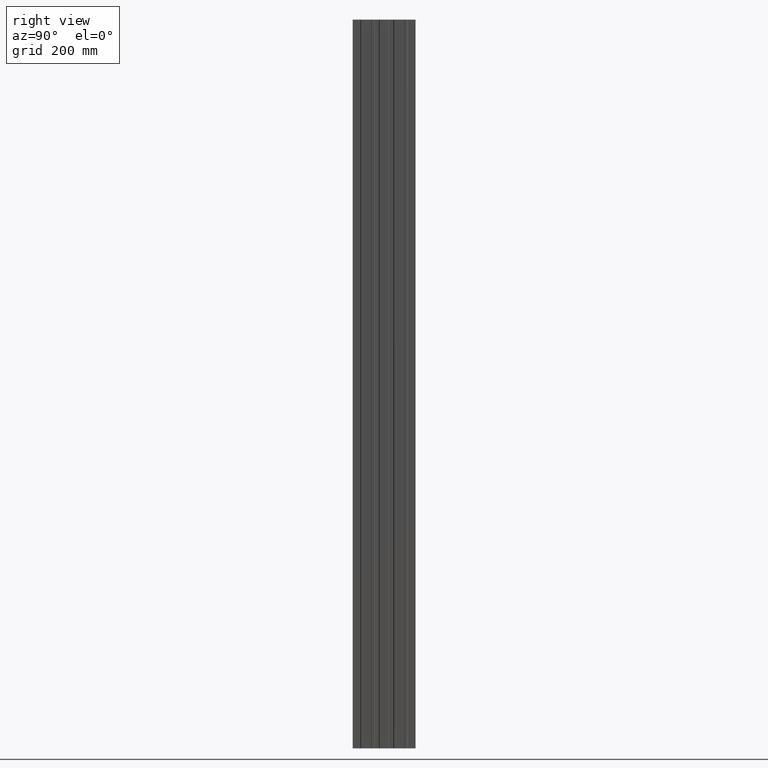
[diagram: clean part render]
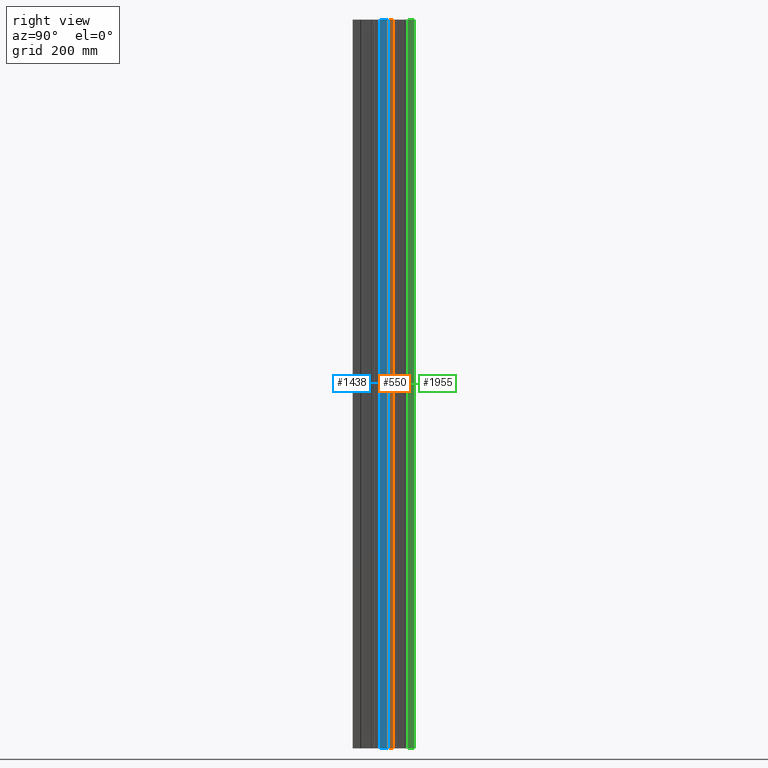
[diagram: same view with three faces highlighted in distinct colors, each labeled with its STEP entity id]
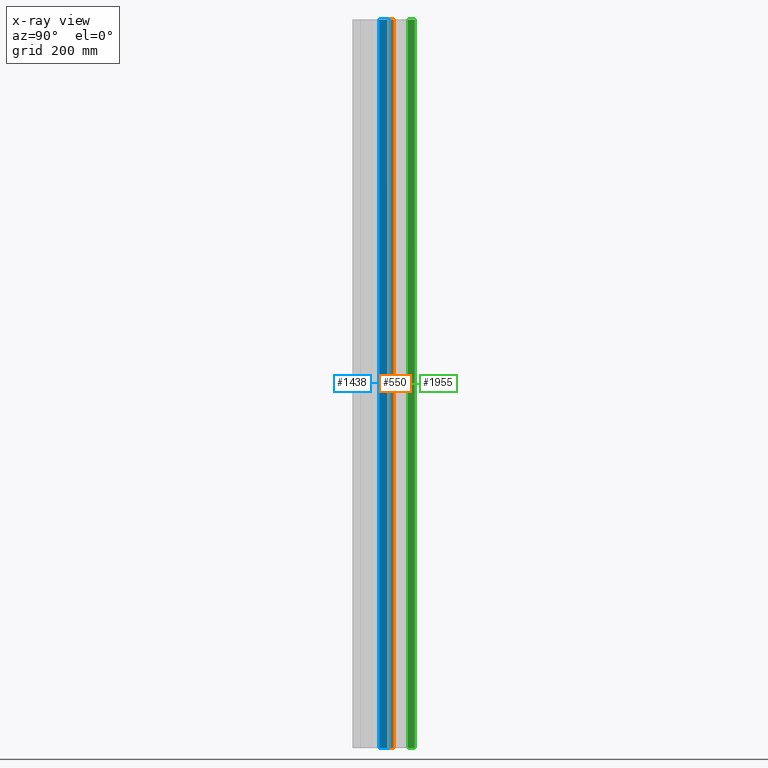
[diagram: x-ray of the same camera — body ghosted, the three highlighted faces saturated]
A machine part, right view with three faces highlighted in distinct colors.
The next image is the same camera in x-ray (body ghosted, the three faces saturated) — at least one of them is partly hidden behind the body in this view.
Their STEP definitions:

[orange] entity #550 — the highlighted planar face has unit normal (-1, 0, 0).
#136 = EDGE_CURVE ( 'NONE', #2437, #1903, #1181, .T. ) ;
#145 = PLANE ( 'NONE',  #1963 ) ;
#152 = ORIENTED_EDGE ( 'NONE', *, *, #433, .T. ) ;
#174 = EDGE_CURVE ( 'NONE', #1785, #1009, #1467, .T. ) ;
#229 = VECTOR ( 'NONE', #1055, 1000.000000000000000 ) ;
#316 = CARTESIAN_POINT ( 'NONE',  ( 5.999999999999992000, 116.0000000000000000, 1162.000000000000000 ) ) ;
#433 = EDGE_CURVE ( 'NONE', #1903, #1009, #1458, .T. ) ;
#443 = DIRECTION ( 'NONE',  ( -0.0000000000000000000, -0.0000000000000000000, -1.000000000000000000 ) ) ;
#469 = EDGE_LOOP ( 'NONE', ( #152, #1793, #1421, #1598 ) ) ;
#472 = CARTESIAN_POINT ( 'NONE',  ( 5.999999999999993800, 129.9792740578363400, 1162.000000000000000 ) ) ;
#480 = CARTESIAN_POINT ( 'NONE',  ( 5.999999999999992000, 116.0000000000000000, -1162.000000000000000 ) ) ;
#493 = DIRECTION ( 'NONE',  ( 1.240925293258971800E-016, 1.000000000000000000, 0.0000000000000000000 ) ) ;
#495 = DIRECTION ( 'NONE',  ( 1.240925293258971800E-016, 1.000000000000000000, 0.0000000000000000000 ) ) ;
#526 = CARTESIAN_POINT ( 'NONE',  ( 5.999999999999992000, 116.0000000000000000, 1162.000000000000000 ) ) ;
#550 = ADVANCED_FACE ( 'NONE', ( #2444 ), #145, .F. ) ;
#684 = DIRECTION ( 'NONE',  ( -1.000000000000000000, 1.240925293258971800E-016, 0.0000000000000000000 ) ) ;
#791 = LINE ( 'NONE', #316, #856 ) ;
#856 = VECTOR ( 'NONE', #495, 1000.000000000000000 ) ;
#942 = VECTOR ( 'NONE', #493, 1000.000000000000000 ) ;
#1009 = VERTEX_POINT ( 'NONE', #1300 ) ;
#1052 = CARTESIAN_POINT ( 'NONE',  ( 5.999999999999992000, 116.0000000000000000, 1162.000000000000000 ) ) ;
#1055 = DIRECTION ( 'NONE',  ( -0.0000000000000000000, -0.0000000000000000000, -1.000000000000000000 ) ) ;
#1181 = LINE ( 'NONE', #2411, #229 ) ;
#1300 = CARTESIAN_POINT ( 'NONE',  ( 5.999999999999993800, 129.9792740578363400, -1162.000000000000000 ) ) ;
#1421 = ORIENTED_EDGE ( 'NONE', *, *, #2273, .F. ) ;
#1458 = LINE ( 'NONE', #1849, #942 ) ;
#1467 = LINE ( 'NONE', #1781, #1540 ) ;
#1540 = VECTOR ( 'NONE', #443, 1000.000000000000000 ) ;
#1598 = ORIENTED_EDGE ( 'NONE', *, *, #136, .T. ) ;
#1781 = CARTESIAN_POINT ( 'NONE',  ( 5.999999999999993800, 129.9792740578363400, 1162.000000000000000 ) ) ;
#1785 = VERTEX_POINT ( 'NONE', #472 ) ;
#1793 = ORIENTED_EDGE ( 'NONE', *, *, #174, .F. ) ;
#1849 = CARTESIAN_POINT ( 'NONE',  ( 5.999999999999992000, 116.0000000000000000, -1162.000000000000000 ) ) ;
#1903 = VERTEX_POINT ( 'NONE', #480 ) ;
#1963 = AXIS2_PLACEMENT_3D ( 'NONE', #1052, #684, #2091 ) ;
#2091 = DIRECTION ( 'NONE',  ( -1.240925293258971800E-016, -1.000000000000000000, 0.0000000000000000000 ) ) ;
#2273 = EDGE_CURVE ( 'NONE', #2437, #1785, #791, .T. ) ;
#2411 = CARTESIAN_POINT ( 'NONE',  ( 5.999999999999992000, 116.0000000000000000, 1162.000000000000000 ) ) ;
#2437 = VERTEX_POINT ( 'NONE', #526 ) ;
#2444 = FACE_OUTER_BOUND ( 'NONE', #469, .T. ) ;

[blue] entity #1438 — the highlighted planar face has unit normal (-1, 0, 0).
#54 = VERTEX_POINT ( 'NONE', #1708 ) ;
#58 = VERTEX_POINT ( 'NONE', #383 ) ;
#219 = VERTEX_POINT ( 'NONE', #2416 ) ;
#251 = ORIENTED_EDGE ( 'NONE', *, *, #980, .T. ) ;
#312 = LINE ( 'NONE', #324, #2349 ) ;
#318 = DIRECTION ( 'NONE',  ( -1.000000000000000000, 0.0000000000000000000, 0.0000000000000000000 ) ) ;
#324 = CARTESIAN_POINT ( 'NONE',  ( 4.000000000000000000, 114.5000000000000000, 1162.000000000000000 ) ) ;
#383 = CARTESIAN_POINT ( 'NONE',  ( 3.999999999999993300, 85.50000000000000000, -1162.000000000000000 ) ) ;
#518 = CARTESIAN_POINT ( 'NONE',  ( 3.999999999999993300, 85.50000000000000000, 1162.000000000000000 ) ) ;
#552 = DIRECTION ( 'NONE',  ( 0.0000000000000000000, 1.000000000000000000, 0.0000000000000000000 ) ) ;
#590 = CARTESIAN_POINT ( 'NONE',  ( 4.000000000000000000, 85.50000000000000000, 1162.000000000000000 ) ) ;
#650 = VERTEX_POINT ( 'NONE', #871 ) ;
#678 = DIRECTION ( 'NONE',  ( -0.0000000000000000000, -0.0000000000000000000, -1.000000000000000000 ) ) ;
#709 = ORIENTED_EDGE ( 'NONE', *, *, #1669, .F. ) ;
#727 = FACE_OUTER_BOUND ( 'NONE', #957, .T. ) ;
#774 = DIRECTION ( 'NONE',  ( 0.0000000000000000000, 1.000000000000000000, 0.0000000000000000000 ) ) ;
#855 = ORIENTED_EDGE ( 'NONE', *, *, #1970, .F. ) ;
#863 = VECTOR ( 'NONE', #774, 1000.000000000000000 ) ;
#871 = CARTESIAN_POINT ( 'NONE',  ( 4.000000000000000000, 114.5000000000000000, 1162.000000000000000 ) ) ;
#906 = CARTESIAN_POINT ( 'NONE',  ( 4.000000000000000000, 85.50000000000000000, -1162.000000000000000 ) ) ;
#957 = EDGE_LOOP ( 'NONE', ( #251, #855, #709, #1481 ) ) ;
#980 = EDGE_CURVE ( 'NONE', #58, #219, #2458, .T. ) ;
#1049 = DIRECTION ( 'NONE',  ( -0.0000000000000000000, -0.0000000000000000000, -1.000000000000000000 ) ) ;
#1222 = CARTESIAN_POINT ( 'NONE',  ( 4.000000000000000000, 85.50000000000000000, 1162.000000000000000 ) ) ;
#1422 = PLANE ( 'NONE',  #1838 ) ;
#1438 = ADVANCED_FACE ( 'NONE', ( #727 ), #1422, .F. ) ;
#1481 = ORIENTED_EDGE ( 'NONE', *, *, #1985, .T. ) ;
#1635 = DIRECTION ( 'NONE',  ( 0.0000000000000000000, 0.0000000000000000000, 1.000000000000000000 ) ) ;
#1669 = EDGE_CURVE ( 'NONE', #54, #650, #1880, .T. ) ;
#1708 = CARTESIAN_POINT ( 'NONE',  ( 3.999999999999993300, 85.50000000000000000, 1162.000000000000000 ) ) ;
#1838 = AXIS2_PLACEMENT_3D ( 'NONE', #1222, #318, #1635 ) ;
#1880 = LINE ( 'NONE', #590, #863 ) ;
#1970 = EDGE_CURVE ( 'NONE', #650, #219, #312, .T. ) ;
#1981 = LINE ( 'NONE', #518, #2407 ) ;
#1985 = EDGE_CURVE ( 'NONE', #54, #58, #1981, .T. ) ;
#2208 = VECTOR ( 'NONE', #552, 1000.000000000000000 ) ;
#2349 = VECTOR ( 'NONE', #1049, 1000.000000000000000 ) ;
#2407 = VECTOR ( 'NONE', #678, 1000.000000000000000 ) ;
#2416 = CARTESIAN_POINT ( 'NONE',  ( 4.000000000000000000, 114.5000000000000000, -1162.000000000000000 ) ) ;
#2458 = LINE ( 'NONE', #906, #2208 ) ;

[green] entity #1955 — the highlighted planar face has unit normal (-1, 0, 0).
#183 = VERTEX_POINT ( 'NONE', #262 ) ;
#262 = CARTESIAN_POINT ( 'NONE',  ( 5.999999999999998200, 198.0000000000000000, -1162.000000000000000 ) ) ;
#484 = LINE ( 'NONE', #1248, #2523 ) ;
#521 = DIRECTION ( 'NONE',  ( -0.0000000000000000000, -0.0000000000000000000, -1.000000000000000000 ) ) ;
#532 = VERTEX_POINT ( 'NONE', #1243 ) ;
#539 = VECTOR ( 'NONE', #1650, 1000.000000000000000 ) ;
#578 = ORIENTED_EDGE ( 'NONE', *, *, #2188, .F. ) ;
#662 = CARTESIAN_POINT ( 'NONE',  ( 5.999999999999998200, 198.0000000000000000, -1162.000000000000000 ) ) ;
#677 = CARTESIAN_POINT ( 'NONE',  ( 5.999999999999998200, 198.0000000000000000, 1162.000000000000000 ) ) ;
#749 = VECTOR ( 'NONE', #2060, 1000.000000000000000 ) ;
#761 = VERTEX_POINT ( 'NONE', #2534 ) ;
#769 = LINE ( 'NONE', #1788, #1770 ) ;
#801 = ORIENTED_EDGE ( 'NONE', *, *, #1168, .T. ) ;
#969 = ORIENTED_EDGE ( 'NONE', *, *, #2280, .T. ) ;
#982 = DIRECTION ( 'NONE',  ( -0.0000000000000000000, -0.0000000000000000000, -1.000000000000000000 ) ) ;
#1008 = LINE ( 'NONE', #677, #539 ) ;
#1162 = EDGE_CURVE ( 'NONE', #761, #2520, #1008, .T. ) ;
#1168 = EDGE_CURVE ( 'NONE', #761, #532, #484, .T. ) ;
#1215 = CARTESIAN_POINT ( 'NONE',  ( 5.999999999999998200, 198.0000000000000000, 1162.000000000000000 ) ) ;
#1227 = DIRECTION ( 'NONE',  ( 0.0000000000000000000, 0.0000000000000000000, 1.000000000000000000 ) ) ;
#1243 = CARTESIAN_POINT ( 'NONE',  ( 6.000000000000000000, 176.0207259421636900, -1162.000000000000000 ) ) ;
#1248 = CARTESIAN_POINT ( 'NONE',  ( 6.000000000000000000, 176.0207259421636900, 1162.000000000000000 ) ) ;
#1478 = FACE_OUTER_BOUND ( 'NONE', #1768, .T. ) ;
#1493 = CARTESIAN_POINT ( 'NONE',  ( 5.999999999999998200, 198.0000000000000000, 1162.000000000000000 ) ) ;
#1606 = AXIS2_PLACEMENT_3D ( 'NONE', #1215, #2479, #1227 ) ;
#1650 = DIRECTION ( 'NONE',  ( -0.0000000000000000000, 1.000000000000000000, -0.0000000000000000000 ) ) ;
#1768 = EDGE_LOOP ( 'NONE', ( #969, #578, #2434, #801 ) ) ;
#1770 = VECTOR ( 'NONE', #982, 1000.000000000000000 ) ;
#1788 = CARTESIAN_POINT ( 'NONE',  ( 5.999999999999998200, 198.0000000000000000, 1162.000000000000000 ) ) ;
#1795 = LINE ( 'NONE', #662, #749 ) ;
#1852 = PLANE ( 'NONE',  #1606 ) ;
#1955 = ADVANCED_FACE ( 'NONE', ( #1478 ), #1852, .F. ) ;
#2060 = DIRECTION ( 'NONE',  ( -0.0000000000000000000, 1.000000000000000000, -0.0000000000000000000 ) ) ;
#2188 = EDGE_CURVE ( 'NONE', #2520, #183, #769, .T. ) ;
#2280 = EDGE_CURVE ( 'NONE', #532, #183, #1795, .T. ) ;
#2434 = ORIENTED_EDGE ( 'NONE', *, *, #1162, .F. ) ;
#2479 = DIRECTION ( 'NONE',  ( -1.000000000000000000, 0.0000000000000000000, 0.0000000000000000000 ) ) ;
#2520 = VERTEX_POINT ( 'NONE', #1493 ) ;
#2523 = VECTOR ( 'NONE', #521, 1000.000000000000000 ) ;
#2534 = CARTESIAN_POINT ( 'NONE',  ( 6.000000000000000000, 176.0207259421636900, 1162.000000000000000 ) ) ;